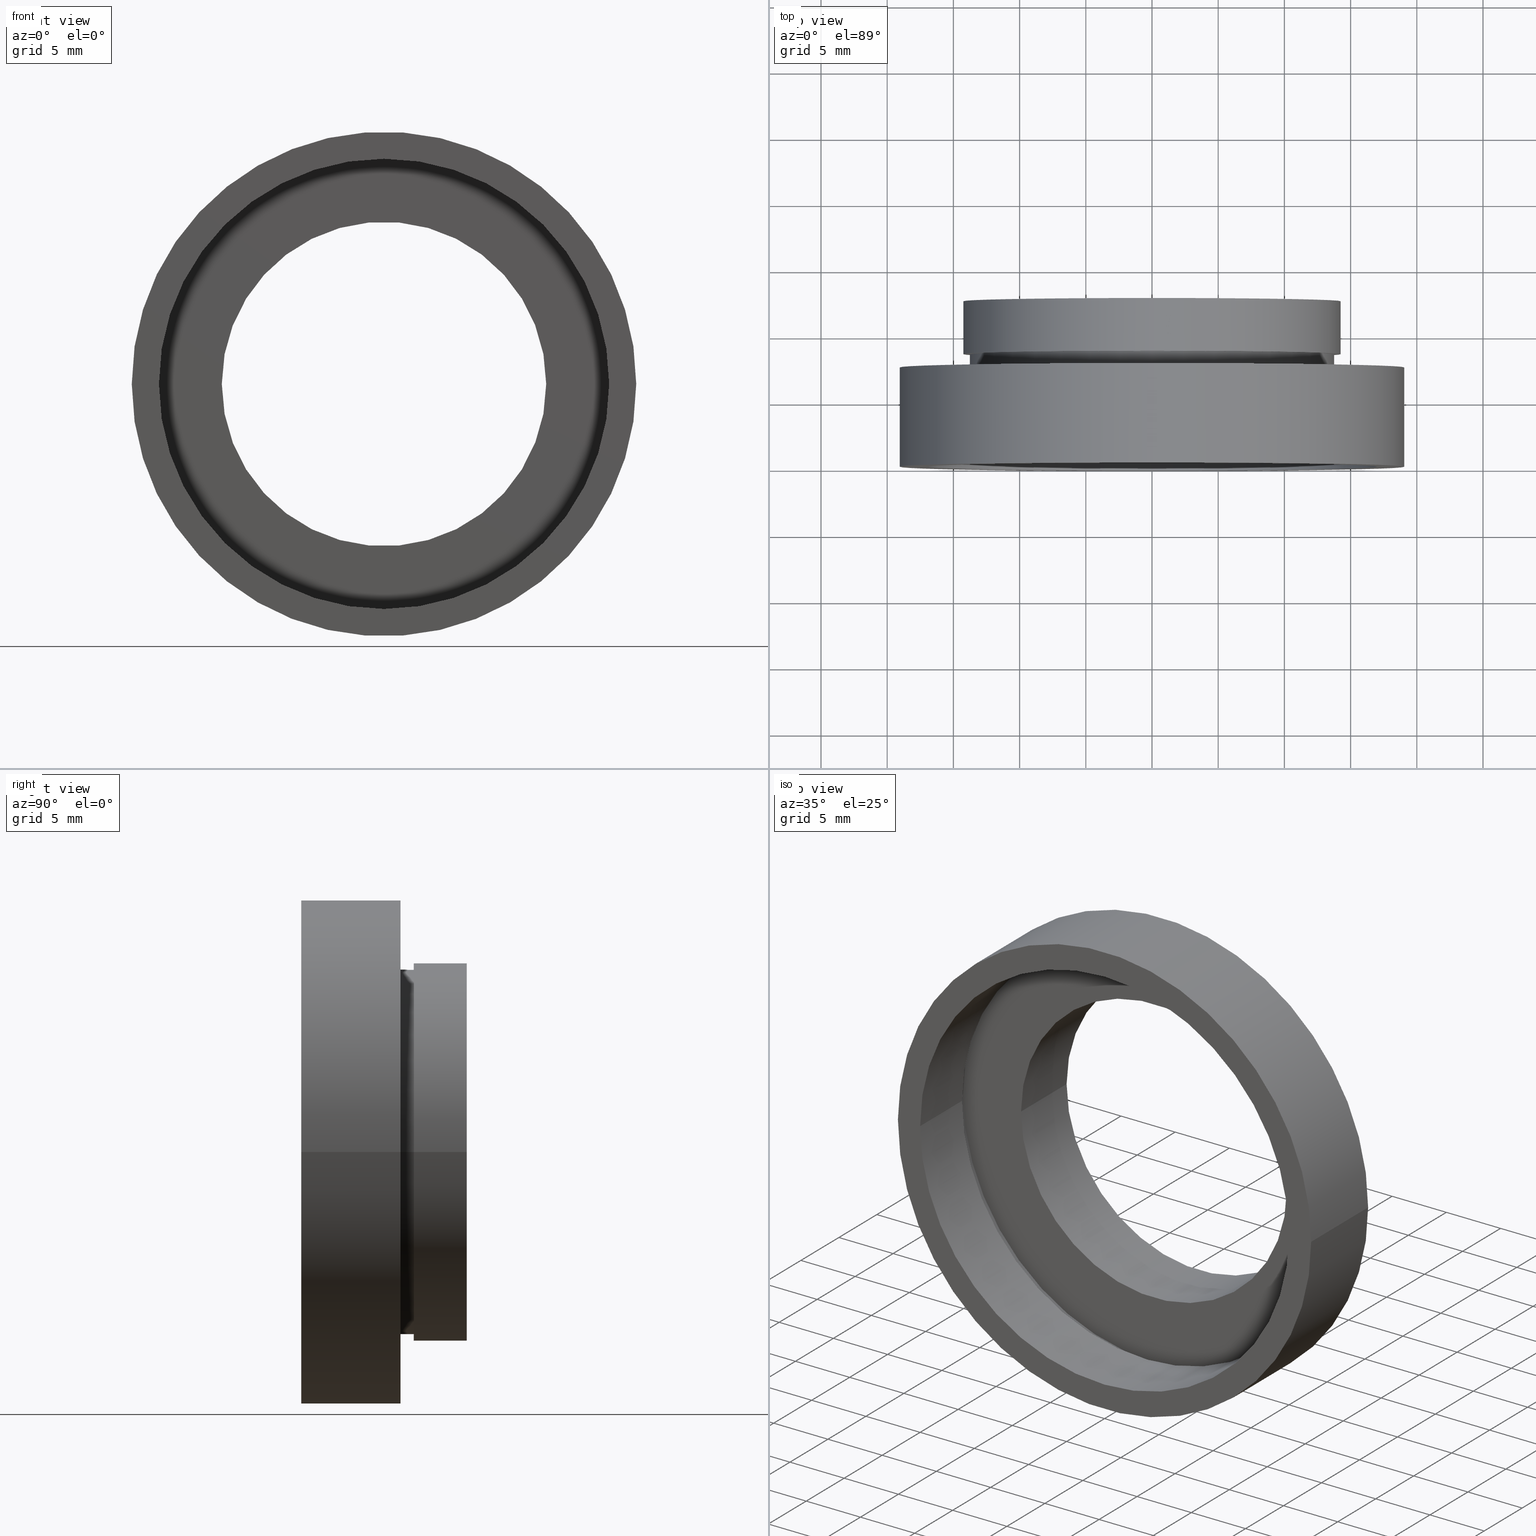
[diagram: canonical four-view strip — front | top / right | iso, engineering-drawing reading convention]
A machine part, canonical four-view strip (front | top / right | iso — engineering-drawing reading convention). The complete STEP part file that produces these views, byte-faithful:
ISO-10303-21;
HEADER;
FILE_DESCRIPTION (( 'STEP AP214' ),
    '1' );
FILE_NAME ('504054.STEP',
    '2019-10-08T03:26:30',
    ( 'user' ),
    ( '΢���й�' ),
    'SwSTEP 2.0',
    'SolidWorks 2016',
    '' );
FILE_SCHEMA (( 'AUTOMOTIVE_DESIGN' ));
ENDSEC;

DATA;
#1 = CARTESIAN_POINT ( 'NONE',  ( 5.371323195044474300E-016, 12.49999999999999600, 0.0000000000000000000 ) ) ;
#2 = AXIS2_PLACEMENT_3D ( 'NONE', #104, #344, #357 ) ;
#3 = EDGE_CURVE ( 'NONE', #366, #114, #51, .T. ) ;
#4 = EDGE_LOOP ( 'NONE', ( #441, #362, #584, #234 ) ) ;
#5 = VERTEX_POINT ( 'NONE', #405 ) ;
#6 = ORIENTED_EDGE ( 'NONE', *, *, #223, .F. ) ;
#7 = PLANE ( 'NONE',  #538 ) ;
#8 = EDGE_CURVE ( 'NONE', #5, #571, #325, .T. ) ;
#9 = CARTESIAN_POINT ( 'NONE',  ( 0.0000000000000000000, 16.88601823708207700, 0.0000000000000000000 ) ) ;
#10 = AXIS2_PLACEMENT_3D ( 'NONE', #50, #70, #326 ) ;
#11 = EDGE_CURVE ( 'NONE', #433, #220, #135, .T. ) ;
#12 = AXIS2_PLACEMENT_3D ( 'NONE', #170, #417, #169 ) ;
#13 = DIRECTION ( 'NONE',  ( -1.224646799147351000E-016, 1.000000000000000000, -0.0000000000000000000 ) ) ;
#14 = CYLINDRICAL_SURFACE ( 'NONE', #312, 19.04999999999999700 ) ;
#15 = DIRECTION ( 'NONE',  ( -1.000000000000000000, 0.0000000000000000000, 0.0000000000000000000 ) ) ;
#16 = ORIENTED_EDGE ( 'NONE', *, *, #322, .T. ) ;
#17 = VERTEX_POINT ( 'NONE', #131 ) ;
#18 = CARTESIAN_POINT ( 'NONE',  ( 0.0000000000000000000, 16.88601823708207700, 0.0000000000000000000 ) ) ;
#19 = ADVANCED_FACE ( 'NONE', ( #94 ), #286, .F. ) ;
#20 = DIRECTION ( 'NONE',  ( -1.000000000000000000, -1.365923996832131600E-016, 0.0000000000000000000 ) ) ;
#21 = CARTESIAN_POINT ( 'NONE',  ( -17.60000000000000100, 16.88601823708207300, 0.0000000000000000000 ) ) ;
#22 = CARTESIAN_POINT ( 'NONE',  ( 13.75000000000000200, 8.500000000000000000, 1.683889348827610700E-015 ) ) ;
#23 = CARTESIAN_POINT ( 'NONE',  ( -13.75000000000000000, 16.88601823708207700, 0.0000000000000000000 ) ) ;
#24 =( LENGTH_UNIT ( ) NAMED_UNIT ( * ) SI_UNIT ( .MILLI., .METRE. ) );
#25 = ORIENTED_EDGE ( 'NONE', *, *, #46, .F. ) ;
#26 = ORIENTED_EDGE ( 'NONE', *, *, #138, .F. ) ;
#27 = VERTEX_POINT ( 'NONE', #352 ) ;
#28 = DIRECTION ( 'NONE',  ( -1.224646799147351000E-016, 1.000000000000000000, -0.0000000000000000000 ) ) ;
#29 = DIRECTION ( 'NONE',  ( -1.224646799147351000E-016, 1.000000000000000000, -0.0000000000000000000 ) ) ;
#30 = VERTEX_POINT ( 'NONE', #79 ) ;
#31 = ORIENTED_EDGE ( 'NONE', *, *, #172, .F. ) ;
#32 =( LENGTH_UNIT ( ) NAMED_UNIT ( * ) SI_UNIT ( .MILLI., .METRE. ) );
#33 = VERTEX_POINT ( 'NONE', #34 ) ;
#34 = CARTESIAN_POINT ( 'NONE',  ( 12.25000000000000400, 6.499999999999999100, 1.500192328955508100E-015 ) ) ;
#35 = AXIS2_PLACEMENT_3D ( 'NONE', #448, #167, #119 ) ;
#36 = VECTOR ( 'NONE', #13, 1000.000000000000000 ) ;
#37 = DIRECTION ( 'NONE',  ( -1.000000000000000000, -9.856383386231857600E-017, 0.0000000000000000000 ) ) ;
#38 = ORIENTED_EDGE ( 'NONE', *, *, #144, .T. ) ;
#39 = ORIENTED_EDGE ( 'NONE', *, *, #582, .F. ) ;
#40 = EDGE_CURVE ( 'NONE', #220, #433, #277, .T. ) ;
#41 = ADVANCED_FACE ( 'NONE', ( #278 ), #576, .F. ) ;
#42 = CARTESIAN_POINT ( 'NONE',  ( -19.04999999999999700, 16.88601823708207300, 0.0000000000000000000 ) ) ;
#43 = STYLED_ITEM ( 'NONE', ( #615 ), #384 ) ;
#44 = STYLED_ITEM ( 'NONE', ( #544 ), #348 ) ;
#45 = CARTESIAN_POINT ( 'NONE',  ( 1.394385078907593000E-015, 5.499999999999998200, 0.0000000000000000000 ) ) ;
#46 = EDGE_CURVE ( 'NONE', #101, #587, #111, .T. ) ;
#47 = SURFACE_STYLE_FILL_AREA ( #141 ) ;
#48 = AXIS2_PLACEMENT_3D ( 'NONE', #526, #456, #392 ) ;
#49 = COLOUR_RGB ( '',1.000000000000000000, 1.000000000000000000, 1.000000000000000000 ) ;
#50 = CARTESIAN_POINT ( 'NONE',  ( 12.25000000000000200, 12.49999999999999800, 0.0000000000000000000 ) ) ;
#51 = CIRCLE ( 'NONE', #88, 14.25000000000000200 ) ;
#52 = ORIENTED_EDGE ( 'NONE', *, *, #565, .T. ) ;
#53 = ORIENTED_EDGE ( 'NONE', *, *, #291, .F. ) ;
#54 = DIRECTION ( 'NONE',  ( -1.224646799147351000E-016, 1.000000000000000000, -0.0000000000000000000 ) ) ;
#55 = CIRCLE ( 'NONE', #12, 12.25000000000000200 ) ;
#56 = DIRECTION ( 'NONE',  ( -1.224646799147351000E-016, 1.000000000000000000, -0.0000000000000000000 ) ) ;
#57 = ADVANCED_FACE ( 'NONE', ( #288 ), #390, .F. ) ;
#58 = EDGE_LOOP ( 'NONE', ( #39, #222, #186, #77 ) ) ;
#59 = DIRECTION ( 'NONE',  ( -1.224646799147351000E-016, 1.000000000000000000, -0.0000000000000000000 ) ) ;
#60 = ADVANCED_FACE ( 'NONE', ( #244, #194 ), #271, .F. ) ;
#61 =( LENGTH_UNIT ( ) NAMED_UNIT ( * ) SI_UNIT ( .MILLI., .METRE. ) );
#62 = DIRECTION ( 'NONE',  ( -1.224646799147351000E-016, 1.000000000000000000, -0.0000000000000000000 ) ) ;
#63 = DIRECTION ( 'NONE',  ( -1.224646799147351000E-016, 1.000000000000000000, -0.0000000000000000000 ) ) ;
#64 =( NAMED_UNIT ( * ) SI_UNIT ( $, .STERADIAN. ) SOLID_ANGLE_UNIT ( ) );
#65 = ORIENTED_EDGE ( 'NONE', *, *, #439, .F. ) ;
#66 = ORIENTED_EDGE ( 'NONE', *, *, #565, .F. ) ;
#67 = DIRECTION ( 'NONE',  ( -1.224646799147351000E-016, 1.000000000000000000, -0.0000000000000000000 ) ) ;
#68 = DIRECTION ( 'NONE',  ( -1.224646799147351000E-016, 1.000000000000000000, -0.0000000000000000000 ) ) ;
#69 = DIRECTION ( 'NONE',  ( -1.224646799147351000E-016, 1.000000000000000000, -0.0000000000000000000 ) ) ;
#70 = DIRECTION ( 'NONE',  ( 1.224646799147351000E-016, -1.000000000000000000, 0.0000000000000000000 ) ) ;
#71 = CIRCLE ( 'NONE', #343, 17.00000000000000400 ) ;
#72 = SURFACE_SIDE_STYLE ('',( #83 ) ) ;
#73 = DIRECTION ( 'NONE',  ( -1.224646799147351000E-016, 1.000000000000000000, -0.0000000000000000000 ) ) ;
#74 = AXIS2_PLACEMENT_3D ( 'NONE', #451, #491, #86 ) ;
#75 = ORIENTED_EDGE ( 'NONE', *, *, #473, .T. ) ;
#76 = CARTESIAN_POINT ( 'NONE',  ( 2.067940818438636500E-015, -3.469446951953614200E-015, 0.0000000000000000000 ) ) ;
#77 = ORIENTED_EDGE ( 'NONE', *, *, #46, .T. ) ;
#78 =( NAMED_UNIT ( * ) SI_UNIT ( $, .STERADIAN. ) SOLID_ANGLE_UNIT ( ) );
#79 = CARTESIAN_POINT ( 'NONE',  ( 17.60000000000000100, 6.499999999999999100, 2.155378366499341600E-015 ) ) ;
#80 = EDGE_CURVE ( 'NONE', #220, #27, #408, .T. ) ;
#81 = EDGE_CURVE ( 'NONE', #33, #374, #594, .T. ) ;
#82 = CARTESIAN_POINT ( 'NONE',  ( 1.394385078907593200E-015, 5.499999999999996400, 0.0000000000000000000 ) ) ;
#83 = SURFACE_STYLE_FILL_AREA ( #246 ) ;
#84 = DIRECTION ( 'NONE',  ( -1.000000000000000000, -1.261617073437678000E-016, 0.0000000000000000000 ) ) ;
#85 = PRESENTATION_LAYER_ASSIGNMENT (  '', '', ( #43 ) ) ;
#86 = DIRECTION ( 'NONE',  ( -1.000000000000000000, -1.261617073437678000E-016, 0.0000000000000000000 ) ) ;
#87 = AXIS2_PLACEMENT_3D ( 'NONE', #321, #469, #416 ) ;
#88 = AXIS2_PLACEMENT_3D ( 'NONE', #188, #95, #250 ) ;
#89 = AXIS2_PLACEMENT_3D ( 'NONE', #225, #63, #422 ) ;
#90 = ORIENTED_EDGE ( 'NONE', *, *, #230, .T. ) ;
#91 = DIRECTION ( 'NONE',  ( -1.224646799147351000E-016, 1.000000000000000000, -0.0000000000000000000 ) ) ;
#92 = COLOUR_RGB ( '',1.000000000000000000, 1.000000000000000000, 1.000000000000000000 ) ;
#93 = CARTESIAN_POINT ( 'NONE',  ( 12.25000000000000000, 16.88601823708207700, 1.500192328955507700E-015 ) ) ;
#94 = FACE_OUTER_BOUND ( 'NONE', #58, .T. ) ;
#95 = DIRECTION ( 'NONE',  ( -1.224646799147351000E-016, 1.000000000000000000, -0.0000000000000000000 ) ) ;
#96 = CIRCLE ( 'NONE', #74, 13.75000000000000000 ) ;
#97 = ORIENTED_EDGE ( 'NONE', *, *, #172, .T. ) ;
#98 = ADVANCED_FACE ( 'NONE', ( #414, #419 ), #130, .F. ) ;
#99 = SURFACE_STYLE_USAGE ( .BOTH. , #429 ) ;
#100 = FILL_AREA_STYLE ('',( #541 ) ) ;
#101 = VERTEX_POINT ( 'NONE', #323 ) ;
#102 = ORIENTED_EDGE ( 'NONE', *, *, #40, .T. ) ;
#103 = ORIENTED_EDGE ( 'NONE', *, *, #247, .T. ) ;
#104 = CARTESIAN_POINT ( 'NONE',  ( 14.25000000000000400, 8.500000000000000000, 0.0000000000000000000 ) ) ;
#105 = AXIS2_PLACEMENT_3D ( 'NONE', #482, #609, #160 ) ;
#106 = ADVANCED_FACE ( 'NONE', ( #410 ), #425, .F. ) ;
#107 = EDGE_CURVE ( 'NONE', #221, #597, #426, .T. ) ;
#108 = EDGE_CURVE ( 'NONE', #374, #583, #444, .T. ) ;
#109 = CARTESIAN_POINT ( 'NONE',  ( 1.394385078907593200E-015, 5.499999999999996400, 0.0000000000000000000 ) ) ;
#110 = CIRCLE ( 'NONE', #35, 14.25000000000000200 ) ;
#111 = CIRCLE ( 'NONE', #269, 17.00000000000000400 ) ;
#112 = DIRECTION ( 'NONE',  ( -1.000000000000000000, -1.224646799147351500E-016, 0.0000000000000000000 ) ) ;
#113 = CARTESIAN_POINT ( 'NONE',  ( 14.25000000000000200, 16.88601823708208000, 1.745121688784978600E-015 ) ) ;
#114 = VERTEX_POINT ( 'NONE', #266 ) ;
#115 = MECHANICAL_DESIGN_GEOMETRIC_PRESENTATION_REPRESENTATION (  '', ( #43 ), #462 ) ;
#116 = ORIENTED_EDGE ( 'NONE', *, *, #468, .T. ) ;
#117 = AXIS2_PLACEMENT_3D ( 'NONE', #1, #91, #370 ) ;
#118 = AXIS2_PLACEMENT_3D ( 'NONE', #421, #122, #84 ) ;
#119 = DIRECTION ( 'NONE',  ( -1.000000000000000000, -1.217349807703022400E-016, 0.0000000000000000000 ) ) ;
#120 = STYLED_ITEM ( 'NONE', ( #477 ), #480 ) ;
#121 = CARTESIAN_POINT ( 'NONE',  ( 1.394385078907593000E-015, 5.499999999999998200, 0.0000000000000000000 ) ) ;
#122 = DIRECTION ( 'NONE',  ( -1.224646799147351000E-016, 1.000000000000000000, -0.0000000000000000000 ) ) ;
#123 = DIRECTION ( 'NONE',  ( -1.224646799147351000E-016, 1.000000000000000000, -0.0000000000000000000 ) ) ;
#124 = PRESENTATION_STYLE_ASSIGNMENT (( #252 ) ) ;
#125 =( NAMED_UNIT ( * ) PLANE_ANGLE_UNIT ( ) SI_UNIT ( $, .RADIAN. ) );
#126 = UNCERTAINTY_MEASURE_WITH_UNIT (LENGTH_MEASURE( 1.000000000000000100E-005 ), #347, 'distance_accuracy_value', 'NONE');
#127 = CARTESIAN_POINT ( 'NONE',  ( -16.99999999999999600, -5.551346510504111700E-015, 0.0000000000000000000 ) ) ;
#128 = ORIENTED_EDGE ( 'NONE', *, *, #81, .F. ) ;
#129 = CARTESIAN_POINT ( 'NONE',  ( 17.00000000000000400, -1.387547393403117700E-015, 2.081899558550500700E-015 ) ) ;
#130 = PLANE ( 'NONE',  #2 ) ;
#131 = CARTESIAN_POINT ( 'NONE',  ( -13.74999999999999800, 7.499999999999996400, 0.0000000000000000000 ) ) ;
#132 = FACE_BOUND ( 'NONE', #315, .T. ) ;
#133 = CARTESIAN_POINT ( 'NONE',  ( 19.05000000000000100, 7.500000000000000900, 2.332952152375707600E-015 ) ) ;
#134 = CARTESIAN_POINT ( 'NONE',  ( 0.0000000000000000000, 16.88601823708207700, 0.0000000000000000000 ) ) ;
#135 = CIRCLE ( 'NONE', #150, 19.04999999999999700 ) ;
#136 = EDGE_LOOP ( 'NONE', ( #190, #191 ) ) ;
#137 = DIRECTION ( 'NONE',  ( -1.224646799147351000E-016, 1.000000000000000000, 0.0000000000000000000 ) ) ;
#138 = EDGE_CURVE ( 'NONE', #593, #571, #413, .T. ) ;
#139 = SURFACE_STYLE_USAGE ( .BOTH. , #140 ) ;
#140 = SURFACE_SIDE_STYLE ('',( #47 ) ) ;
#141 = FILL_AREA_STYLE ('',( #187 ) ) ;
#142 = AXIS2_PLACEMENT_3D ( 'NONE', #442, #62, #161 ) ;
#143 =( NAMED_UNIT ( * ) SI_UNIT ( $, .STERADIAN. ) SOLID_ANGLE_UNIT ( ) );
#144 = EDGE_CURVE ( 'NONE', #17, #593, #452, .T. ) ;
#145 = ORIENTED_EDGE ( 'NONE', *, *, #247, .F. ) ;
#146 = ORIENTED_EDGE ( 'NONE', *, *, #8, .T. ) ;
#147 =( NAMED_UNIT ( * ) PLANE_ANGLE_UNIT ( ) SI_UNIT ( $, .RADIAN. ) );
#148 = AXIS2_PLACEMENT_3D ( 'NONE', #284, #29, #340 ) ;
#149 = DIRECTION ( 'NONE',  ( -1.224646799147351000E-016, 1.000000000000000000, -0.0000000000000000000 ) ) ;
#150 = AXIS2_PLACEMENT_3D ( 'NONE', #519, #182, #155 ) ;
#151 = PRESENTATION_LAYER_ASSIGNMENT (  '', '', ( #120 ) ) ;
#152 = ORIENTED_EDGE ( 'NONE', *, *, #8, .F. ) ;
#153 = VERTEX_POINT ( 'NONE', #400 ) ;
#154 = SURFACE_STYLE_FILL_AREA ( #585 ) ;
#155 = DIRECTION ( 'NONE',  ( -1.000000000000000000, -1.224646799147351000E-016, 0.0000000000000000000 ) ) ;
#156 = ADVANCED_FACE ( 'NONE', ( #564 ), #458, .T. ) ;
#157 = CARTESIAN_POINT ( 'NONE',  ( -14.25000000000000200, 16.88601823708207300, 0.0000000000000000000 ) ) ;
#158 = ORIENTED_EDGE ( 'NONE', *, *, #473, .F. ) ;
#159 = ORIENTED_EDGE ( 'NONE', *, *, #196, .F. ) ;
#160 = DIRECTION ( 'NONE',  ( -1.000000000000000000, -2.434699615406044700E-016, 0.0000000000000000000 ) ) ;
#161 = DIRECTION ( 'NONE',  ( -1.000000000000000000, -9.856383386231857600E-017, 0.0000000000000000000 ) ) ;
#162 = EDGE_LOOP ( 'NONE', ( #415, #354 ) ) ;
#163 = DIRECTION ( 'NONE',  ( -1.000000000000000000, -1.224646799147351000E-016, 0.0000000000000000000 ) ) ;
#164 = CARTESIAN_POINT ( 'NONE',  ( 13.75000000000000200, 7.500000000000000000, 1.683889348827610700E-015 ) ) ;
#165 = CARTESIAN_POINT ( 'NONE',  ( -19.04999999999999400, -5.802399104329317500E-015, 0.0000000000000000000 ) ) ;
#166 = CARTESIAN_POINT ( 'NONE',  ( 0.0000000000000000000, 0.0000000000000000000, 0.0000000000000000000 ) ) ;
#167 = DIRECTION ( 'NONE',  ( -1.224646799147351000E-016, 1.000000000000000000, -0.0000000000000000000 ) ) ;
#168 = APPLICATION_PROTOCOL_DEFINITION ( 'draft international standard', 'automotive_design', 1998, #535 ) ;
#169 = DIRECTION ( 'NONE',  ( -1.000000000000000000, -1.416100796715760600E-016, 0.0000000000000000000 ) ) ;
#170 = CARTESIAN_POINT ( 'NONE',  ( 5.371323195044474300E-016, 12.49999999999999600, 0.0000000000000000000 ) ) ;
#171 =( NAMED_UNIT ( * ) SI_UNIT ( $, .STERADIAN. ) SOLID_ANGLE_UNIT ( ) );
#172 = EDGE_CURVE ( 'NONE', #571, #5, #460, .T. ) ;
#173 = DIRECTION ( 'NONE',  ( -1.000000000000000000, -2.434699615406044700E-016, 0.0000000000000000000 ) ) ;
#174 = DIRECTION ( 'NONE',  ( -1.224646799147351000E-016, 1.000000000000000000, -0.0000000000000000000 ) ) ;
#175 = SHAPE_DEFINITION_REPRESENTATION ( #193, #384 ) ;
#176 = FACE_OUTER_BOUND ( 'NONE', #339, .T. ) ;
#177 = PRESENTATION_LAYER_ASSIGNMENT (  '', '', ( #44 ) ) ;
#178 = STYLED_ITEM ( 'NONE', ( #185 ), #19 ) ;
#179 = MECHANICAL_DESIGN_GEOMETRIC_PRESENTATION_REPRESENTATION (  '', ( #120 ), #205 ) ;
#180 = ORIENTED_EDGE ( 'NONE', *, *, #601, .F. ) ;
#181 = SURFACE_SIDE_STYLE ('',( #154 ) ) ;
#182 = DIRECTION ( 'NONE',  ( -1.224646799147351000E-016, 1.000000000000000000, -0.0000000000000000000 ) ) ;
#183 = LINE ( 'NONE', #21, #294 ) ;
#184 = STYLED_ITEM ( 'NONE', ( #258 ), #57 ) ;
#185 = PRESENTATION_STYLE_ASSIGNMENT (( #99 ) ) ;
#186 = ORIENTED_EDGE ( 'NONE', *, *, #601, .T. ) ;
#187 = FILL_AREA_STYLE_COLOUR ( '', #198 ) ;
#188 = CARTESIAN_POINT ( 'NONE',  ( 5.371323195044474300E-016, 12.49999999999999600, 0.0000000000000000000 ) ) ;
#189 = EDGE_LOOP ( 'NONE', ( #388, #158, #611, #116 ) ) ;
#190 = ORIENTED_EDGE ( 'NONE', *, *, #196, .T. ) ;
#191 = ORIENTED_EDGE ( 'NONE', *, *, #499, .T. ) ;
#192 =( NAMED_UNIT ( * ) PLANE_ANGLE_UNIT ( ) SI_UNIT ( $, .RADIAN. ) );
#193 = PRODUCT_DEFINITION_SHAPE ( 'NONE', 'NONE',  #228 ) ;
#194 = FACE_OUTER_BOUND ( 'NONE', #453, .T. ) ;
#195 = AXIS2_PLACEMENT_3D ( 'NONE', #166, #485, #350 ) ;
#196 = EDGE_CURVE ( 'NONE', #359, #382, #575, .T. ) ;
#197 = PLANE ( 'NONE',  #10 ) ;
#198 = COLOUR_RGB ( '',1.000000000000000000, 1.000000000000000000, 1.000000000000000000 ) ;
#199 = SURFACE_STYLE_USAGE ( .BOTH. , #598 ) ;
#200 = DIRECTION ( 'NONE',  ( -1.000000000000000000, -1.020425574104004000E-016, 0.0000000000000000000 ) ) ;
#201 = ORIENTED_EDGE ( 'NONE', *, *, #11, .F. ) ;
#202 = MECHANICAL_DESIGN_GEOMETRIC_PRESENTATION_REPRESENTATION (  '', ( #44 ), #236 ) ;
#203 = PRESENTATION_LAYER_ASSIGNMENT (  '', '', ( #178 ) ) ;
#204 = DIRECTION ( 'NONE',  ( -1.224646799147351000E-016, 1.000000000000000000, -0.0000000000000000000 ) ) ;
#205 =( GEOMETRIC_REPRESENTATION_CONTEXT ( 3 ) GLOBAL_UNCERTAINTY_ASSIGNED_CONTEXT ( ( #224 ) ) GLOBAL_UNIT_ASSIGNED_CONTEXT ( ( #32, #147, #143 ) ) REPRESENTATION_CONTEXT ( 'NONE', 'WORKASPACE' ) );
#206 = DIRECTION ( 'NONE',  ( -1.000000000000000000, -1.217349807703022400E-016, 0.0000000000000000000 ) ) ;
#207 = CARTESIAN_POINT ( 'NONE',  ( 17.60000000000000100, 16.88601823708208000, 2.155378366499341600E-015 ) ) ;
#208 = CARTESIAN_POINT ( 'NONE',  ( 17.00000000000000400, 5.500000000000000000, 2.081899558550500700E-015 ) ) ;
#209 = ADVANCED_FACE ( 'NONE', ( #459 ), #483, .T. ) ;
#210 = LINE ( 'NONE', #308, #262 ) ;
#211 = COLOUR_RGB ( '',1.000000000000000000, 1.000000000000000000, 1.000000000000000000 ) ;
#212 = UNCERTAINTY_MEASURE_WITH_UNIT (LENGTH_MEASURE( 1.000000000000000100E-005 ), #61, 'distance_accuracy_value', 'NONE');
#213 = CARTESIAN_POINT ( 'NONE',  ( 1.026991039163387700E-015, 8.499999999999998200, 0.0000000000000000000 ) ) ;
#214 = VERTEX_POINT ( 'NONE', #488 ) ;
#215 = AXIS2_PLACEMENT_3D ( 'NONE', #76, #546, #545 ) ;
#216 = PRESENTATION_STYLE_ASSIGNMENT (( #579 ) ) ;
#217 = DIRECTION ( 'NONE',  ( -1.224646799147351000E-016, 1.000000000000000000, -0.0000000000000000000 ) ) ;
#218 = DIRECTION ( 'NONE',  ( -1.000000000000000000, 0.0000000000000000000, 0.0000000000000000000 ) ) ;
#219 = SURFACE_STYLE_USAGE ( .BOTH. , #358 ) ;
#220 = VERTEX_POINT ( 'NONE', #165 ) ;
#221 = VERTEX_POINT ( 'NONE', #127 ) ;
#222 = ORIENTED_EDGE ( 'NONE', *, *, #107, .F. ) ;
#223 = EDGE_CURVE ( 'NONE', #17, #5, #479, .T. ) ;
#224 = UNCERTAINTY_MEASURE_WITH_UNIT (LENGTH_MEASURE( 1.000000000000000100E-005 ), #32, 'distance_accuracy_value', 'NONE');
#225 = CARTESIAN_POINT ( 'NONE',  ( 1.271920398992858000E-015, 6.499999999999997300, 0.0000000000000000000 ) ) ;
#226 = ORIENTED_EDGE ( 'NONE', *, *, #231, .F. ) ;
#227 = CARTESIAN_POINT ( 'NONE',  ( -12.24999999999999800, 6.499999999999995600, 0.0000000000000000000 ) ) ;
#228 = PRODUCT_DEFINITION ( 'δ֪', '', #256, #455 ) ;
#229 = CARTESIAN_POINT ( 'NONE',  ( 13.75000000000000200, 7.500000000000000000, 0.0000000000000000000 ) ) ;
#230 = EDGE_CURVE ( 'NONE', #593, #17, #96, .T. ) ;
#231 = EDGE_CURVE ( 'NONE', #114, #366, #110, .T. ) ;
#232 = DIRECTION ( 'NONE',  ( -1.000000000000000000, -1.224646799147351500E-016, 0.0000000000000000000 ) ) ;
#233 = UNCERTAINTY_MEASURE_WITH_UNIT (LENGTH_MEASURE( 1.000000000000000100E-005 ), #447, 'distance_accuracy_value', 'NONE');
#234 = ORIENTED_EDGE ( 'NONE', *, *, #3, .F. ) ;
#235 = CLOSED_SHELL ( 'NONE', ( #156, #386, #209, #348, #106, #480, #436, #19, #297, #41, #373, #57, #290, #588, #98, #318, #60, #540 ) ) ;
#236 =( GEOMETRIC_REPRESENTATION_CONTEXT ( 3 ) GLOBAL_UNCERTAINTY_ASSIGNED_CONTEXT ( ( #614 ) ) GLOBAL_UNIT_ASSIGNED_CONTEXT ( ( #474, #566, #489 ) ) REPRESENTATION_CONTEXT ( 'NONE', 'WORKASPACE' ) );
#237 = MECHANICAL_DESIGN_GEOMETRIC_PRESENTATION_REPRESENTATION (  '', ( #178 ), #264 ) ;
#238 = AXIS2_PLACEMENT_3D ( 'NONE', #548, #608, #592 ) ;
#239 = VECTOR ( 'NONE', #248, 1000.000000000000000 ) ;
#240 = ORIENTED_EDGE ( 'NONE', *, *, #11, .T. ) ;
#241 = ORIENTED_EDGE ( 'NONE', *, *, #599, .T. ) ;
#242 = AXIS2_PLACEMENT_3D ( 'NONE', #18, #56, #406 ) ;
#243 = FACE_OUTER_BOUND ( 'NONE', #327, .T. ) ;
#244 = FACE_BOUND ( 'NONE', #162, .T. ) ;
#245 = DIRECTION ( 'NONE',  ( -1.000000000000000000, -1.821231995776175700E-016, 0.0000000000000000000 ) ) ;
#246 = FILL_AREA_STYLE ('',( #443 ) ) ;
#247 = EDGE_CURVE ( 'NONE', #214, #30, #486, .T. ) ;
#248 = DIRECTION ( 'NONE',  ( -1.224646799147351000E-016, 1.000000000000000000, -0.0000000000000000000 ) ) ;
#249 = DIRECTION ( 'NONE',  ( -1.224646799147351000E-016, 1.000000000000000000, -0.0000000000000000000 ) ) ;
#250 = DIRECTION ( 'NONE',  ( -1.000000000000000000, -1.217349807703022400E-016, 0.0000000000000000000 ) ) ;
#251 = CARTESIAN_POINT ( 'NONE',  ( 0.0000000000000000000, 16.88601823708207700, 0.0000000000000000000 ) ) ;
#252 = SURFACE_STYLE_USAGE ( .BOTH. , #72 ) ;
#253 = DIRECTION ( 'NONE',  ( 1.224646799147351000E-016, -1.000000000000000000, 0.0000000000000000000 ) ) ;
#254 = FILL_AREA_STYLE_COLOUR ( '', #283 ) ;
#255 = SURFACE_SIDE_STYLE ('',( #533 ) ) ;
#256 = PRODUCT_DEFINITION_FORMATION_WITH_SPECIFIED_SOURCE ( '�κ�', '', #521, .NOT_KNOWN. ) ;
#257 = ORIENTED_EDGE ( 'NONE', *, *, #556, .F. ) ;
#258 = PRESENTATION_STYLE_ASSIGNMENT (( #596 ) ) ;
#259 = EDGE_CURVE ( 'NONE', #33, #389, #503, .T. ) ;
#260 = ORIENTED_EDGE ( 'NONE', *, *, #536, .T. ) ;
#261 = PLANE ( 'NONE',  #87 ) ;
#262 = VECTOR ( 'NONE', #393, 1000.000000000000000 ) ;
#263 = PRESENTATION_LAYER_ASSIGNMENT (  '', '', ( #296 ) ) ;
#264 =( GEOMETRIC_REPRESENTATION_CONTEXT ( 3 ) GLOBAL_UNCERTAINTY_ASSIGNED_CONTEXT ( ( #372 ) ) GLOBAL_UNIT_ASSIGNED_CONTEXT ( ( #24, #446, #379 ) ) REPRESENTATION_CONTEXT ( 'NONE', 'WORKASPACE' ) );
#265 = AXIS2_PLACEMENT_3D ( 'NONE', #82, #54, #37 ) ;
#266 = CARTESIAN_POINT ( 'NONE',  ( -14.25000000000000200, 12.49999999999999500, 0.0000000000000000000 ) ) ;
#267 = ORIENTED_EDGE ( 'NONE', *, *, #531, .F. ) ;
#268 = EDGE_LOOP ( 'NONE', ( #620, #346 ) ) ;
#269 = AXIS2_PLACEMENT_3D ( 'NONE', #45, #385, #623 ) ;
#270 = ORIENTED_EDGE ( 'NONE', *, *, #81, .T. ) ;
#271 = PLANE ( 'NONE',  #530 ) ;
#272 = SURFACE_STYLE_FILL_AREA ( #313 ) ;
#273 = AXIS2_PLACEMENT_3D ( 'NONE', #589, #69, #554 ) ;
#274 = FILL_AREA_STYLE_COLOUR ( '', #523 ) ;
#275 = CIRCLE ( 'NONE', #507, 19.05000000000000100 ) ;
#276 = ORIENTED_EDGE ( 'NONE', *, *, #80, .T. ) ;
#277 = CIRCLE ( 'NONE', #215, 19.04999999999999700 ) ;
#278 = FACE_OUTER_BOUND ( 'NONE', #367, .T. ) ;
#279 = CARTESIAN_POINT ( 'NONE',  ( 13.75000000000000000, 16.88601823708207700, 1.683889348827610700E-015 ) ) ;
#280 = EDGE_LOOP ( 'NONE', ( #25, #66 ) ) ;
#281 = DIRECTION ( 'NONE',  ( 1.000000000000000000, 1.224646799147351000E-016, 0.0000000000000000000 ) ) ;
#282 = DIRECTION ( 'NONE',  ( -1.224646799147351000E-016, 1.000000000000000000, -0.0000000000000000000 ) ) ;
#283 = COLOUR_RGB ( '',1.000000000000000000, 1.000000000000000000, 1.000000000000000000 ) ;
#284 = CARTESIAN_POINT ( 'NONE',  ( 0.0000000000000000000, 16.88601823708207700, 0.0000000000000000000 ) ) ;
#285 = ORIENTED_EDGE ( 'NONE', *, *, #411, .F. ) ;
#286 = CYLINDRICAL_SURFACE ( 'NONE', #242, 17.00000000000000000 ) ;
#287 = PRODUCT_RELATED_PRODUCT_CATEGORY ( 'part', '', ( #521 ) ) ;
#288 = FACE_OUTER_BOUND ( 'NONE', #189, .T. ) ;
#289 = DIRECTION ( 'NONE',  ( -1.224646799147351000E-016, 1.000000000000000000, -0.0000000000000000000 ) ) ;
#290 = ADVANCED_FACE ( 'NONE', ( #525, #504 ), #197, .F. ) ;
#291 = EDGE_CURVE ( 'NONE', #153, #114, #508, .T. ) ;
#292 = DIRECTION ( 'NONE',  ( -1.224646799147351000E-016, 1.000000000000000000, -0.0000000000000000000 ) ) ;
#293 = CARTESIAN_POINT ( 'NONE',  ( -12.25000000000000200, 12.49999999999999500, 0.0000000000000000000 ) ) ;
#294 = VECTOR ( 'NONE', #560, 1000.000000000000000 ) ;
#295 = DIRECTION ( 'NONE',  ( -1.224646799147351000E-016, 1.000000000000000000, -0.0000000000000000000 ) ) ;
#296 = STYLED_ITEM ( 'NONE', ( #557 ), #365 ) ;
#297 = ADVANCED_FACE ( 'NONE', ( #493, #514 ), #261, .F. ) ;
#298 = DIRECTION ( 'NONE',  ( -1.224646799147351000E-016, 1.000000000000000000, -0.0000000000000000000 ) ) ;
#299 = AXIS2_PLACEMENT_3D ( 'NONE', #409, #174, #402 ) ;
#300 = DIRECTION ( 'NONE',  ( -1.224646799147351000E-016, 1.000000000000000000, -0.0000000000000000000 ) ) ;
#301 =( LENGTH_UNIT ( ) NAMED_UNIT ( * ) SI_UNIT ( .MILLI., .METRE. ) );
#302 =( LENGTH_UNIT ( ) NAMED_UNIT ( * ) SI_UNIT ( .MILLI., .METRE. ) );
#303 = CARTESIAN_POINT ( 'NONE',  ( 1.026991039163387700E-015, 8.499999999999998200, 0.0000000000000000000 ) ) ;
#304 = DIRECTION ( 'NONE',  ( -1.224646799147351000E-016, 1.000000000000000000, -0.0000000000000000000 ) ) ;
#305 = LINE ( 'NONE', #207, #449 ) ;
#306 = CARTESIAN_POINT ( 'NONE',  ( -12.25000000000000000, 16.88601823708207700, 0.0000000000000000000 ) ) ;
#307 = AXIS2_PLACEMENT_3D ( 'NONE', #440, #68, #391 ) ;
#308 = CARTESIAN_POINT ( 'NONE',  ( 17.00000000000000000, 16.88601823708208000, 2.081899558550500300E-015 ) ) ;
#309 = ORIENTED_EDGE ( 'NONE', *, *, #223, .T. ) ;
#310 = CARTESIAN_POINT ( 'NONE',  ( 0.0000000000000000000, 16.88601823708207700, 0.0000000000000000000 ) ) ;
#311 = APPLICATION_PROTOCOL_DEFINITION ( 'draft international standard', 'automotive_design', 1998, #501 ) ;
#312 = AXIS2_PLACEMENT_3D ( 'NONE', #310, #73, #349 ) ;
#313 = FILL_AREA_STYLE ('',( #616 ) ) ;
#314 = DIRECTION ( 'NONE',  ( -1.224646799147351000E-016, 1.000000000000000000, -0.0000000000000000000 ) ) ;
#315 = EDGE_LOOP ( 'NONE', ( #551, #622 ) ) ;
#316 = DIRECTION ( 'NONE',  ( -1.224646799147351000E-016, 1.000000000000000000, -0.0000000000000000000 ) ) ;
#317 = CARTESIAN_POINT ( 'NONE',  ( -17.60000000000000100, 5.499999999999994700, 0.0000000000000000000 ) ) ;
#318 = ADVANCED_FACE ( 'NONE', ( #532 ), #553, .T. ) ;
#319 = CYLINDRICAL_SURFACE ( 'NONE', #607, 13.75000000000000000 ) ;
#320 = EDGE_LOOP ( 'NONE', ( #102, #260, #336, #369 ) ) ;
#321 = CARTESIAN_POINT ( 'NONE',  ( 17.00000000000000400, 5.500000000000000000, 0.0000000000000000000 ) ) ;
#322 = EDGE_CURVE ( 'NONE', #389, #583, #558, .T. ) ;
#323 = CARTESIAN_POINT ( 'NONE',  ( -17.00000000000000400, 5.499999999999996400, 0.0000000000000000000 ) ) ;
#324 = CIRCLE ( 'NONE', #265, 17.60000000000000100 ) ;
#325 = CIRCLE ( 'NONE', #118, 13.75000000000000000 ) ;
#326 = DIRECTION ( 'NONE',  ( 1.000000000000000000, 1.224646799147351000E-016, 0.0000000000000000000 ) ) ;
#327 = EDGE_LOOP ( 'NONE', ( #145, #602 ) ) ;
#328 = ORIENTED_EDGE ( 'NONE', *, *, #40, .F. ) ;
#329 = AXIS2_PLACEMENT_3D ( 'NONE', #331, #314, #15 ) ;
#330 = AXIS2_PLACEMENT_3D ( 'NONE', #341, #454, #112 ) ;
#331 = CARTESIAN_POINT ( 'NONE',  ( 0.0000000000000000000, 16.88601823708207700, 0.0000000000000000000 ) ) ;
#332 = FACE_OUTER_BOUND ( 'NONE', #4, .T. ) ;
#333 = FACE_OUTER_BOUND ( 'NONE', #512, .T. ) ;
#334 = AXIS2_PLACEMENT_3D ( 'NONE', #395, #282, #232 ) ;
#335 = EDGE_LOOP ( 'NONE', ( #146, #97 ) ) ;
#336 = ORIENTED_EDGE ( 'NONE', *, *, #605, .F. ) ;
#337 = DIRECTION ( 'NONE',  ( -1.000000000000000000, -1.416100796715760900E-016, 0.0000000000000000000 ) ) ;
#338 = PRESENTATION_LAYER_ASSIGNMENT (  '', '', ( #184 ) ) ;
#339 = EDGE_LOOP ( 'NONE', ( #38, #381, #152, #6 ) ) ;
#340 = DIRECTION ( 'NONE',  ( -1.000000000000000000, 0.0000000000000000000, 0.0000000000000000000 ) ) ;
#341 = CARTESIAN_POINT ( 'NONE',  ( 2.067940818438636500E-015, -3.469446951953614200E-015, 0.0000000000000000000 ) ) ;
#342 = VECTOR ( 'NONE', #550, 1000.000000000000000 ) ;
#343 = AXIS2_PLACEMENT_3D ( 'NONE', #121, #123, #200 ) ;
#344 = DIRECTION ( 'NONE',  ( -1.224646799147351000E-016, 1.000000000000000000, 0.0000000000000000000 ) ) ;
#345 = EDGE_LOOP ( 'NONE', ( #361, #240, #276, #257 ) ) ;
#346 = ORIENTED_EDGE ( 'NONE', *, *, #3, .T. ) ;
#347 =( LENGTH_UNIT ( ) NAMED_UNIT ( * ) SI_UNIT ( .MILLI., .METRE. ) );
#348 = ADVANCED_FACE ( 'NONE', ( #528 ), #464, .F. ) ;
#349 = DIRECTION ( 'NONE',  ( -1.000000000000000000, -1.821231995776175700E-016, 0.0000000000000000000 ) ) ;
#350 = DIRECTION ( 'NONE',  ( 1.000000000000000000, 0.0000000000000000000, 0.0000000000000000000 ) ) ;
#351 = LINE ( 'NONE', #113, #36 ) ;
#352 = CARTESIAN_POINT ( 'NONE',  ( -19.05000000000000100, 7.499999999999995600, 0.0000000000000000000 ) ) ;
#353 = CARTESIAN_POINT ( 'NONE',  ( 1.271920398992858000E-015, 6.499999999999997300, 0.0000000000000000000 ) ) ;
#354 = ORIENTED_EDGE ( 'NONE', *, *, #230, .F. ) ;
#355 = ORIENTED_EDGE ( 'NONE', *, *, #468, .F. ) ;
#356 = ORIENTED_EDGE ( 'NONE', *, *, #599, .F. ) ;
#357 = DIRECTION ( 'NONE',  ( -1.000000000000000000, -1.224646799147351000E-016, 0.0000000000000000000 ) ) ;
#358 = SURFACE_SIDE_STYLE ('',( #465 ) ) ;
#359 = VERTEX_POINT ( 'NONE', #317 ) ;
#360 = EDGE_LOOP ( 'NONE', ( #518, #559, #52, #180 ) ) ;
#361 = ORIENTED_EDGE ( 'NONE', *, *, #536, .F. ) ;
#362 = ORIENTED_EDGE ( 'NONE', *, *, #531, .T. ) ;
#363 = MECHANICAL_DESIGN_GEOMETRIC_PRESENTATION_REPRESENTATION (  '', ( #296 ), #394 ) ;
#364 = AXIS2_PLACEMENT_3D ( 'NONE', #303, #461, #437 ) ;
#365 = MANIFOLD_SOLID_BREP ( '��ת1', #235 ) ;
#366 = VERTEX_POINT ( 'NONE', #621 ) ;
#367 = EDGE_LOOP ( 'NONE', ( #65, #159, #606, #103 ) ) ;
#368 = AXIS2_PLACEMENT_3D ( 'NONE', #432, #292, #427 ) ;
#369 = ORIENTED_EDGE ( 'NONE', *, *, #80, .F. ) ;
#370 = DIRECTION ( 'NONE',  ( -1.000000000000000000, -1.416100796715760600E-016, 0.0000000000000000000 ) ) ;
#371 = MECHANICAL_DESIGN_GEOMETRIC_PRESENTATION_REPRESENTATION (  '', ( #184 ), #407 ) ;
#372 = UNCERTAINTY_MEASURE_WITH_UNIT (LENGTH_MEASURE( 1.000000000000000100E-005 ), #24, 'distance_accuracy_value', 'NONE');
#373 = ADVANCED_FACE ( 'NONE', ( #243, #511 ), #7, .F. ) ;
#374 = VERTEX_POINT ( 'NONE', #227 ) ;
#375 = STYLED_ITEM ( 'NONE', ( #124 ), #588 ) ;
#376 = EDGE_LOOP ( 'NONE', ( #505, #397, #396, #285 ) ) ;
#377 = CARTESIAN_POINT ( 'NONE',  ( 14.25000000000000500, 8.500000000000000000, 1.745121688784979000E-015 ) ) ;
#378 = ORIENTED_EDGE ( 'NONE', *, *, #108, .F. ) ;
#379 =( NAMED_UNIT ( * ) SI_UNIT ( $, .STERADIAN. ) SOLID_ANGLE_UNIT ( ) );
#380 = VECTOR ( 'NONE', #59, 1000.000000000000000 ) ;
#381 = ORIENTED_EDGE ( 'NONE', *, *, #138, .T. ) ;
#382 = VERTEX_POINT ( 'NONE', #471 ) ;
#383 = VERTEX_POINT ( 'NONE', #133 ) ;
#384 = ADVANCED_BREP_SHAPE_REPRESENTATION ( '504054', ( #365, #195 ), #603 ) ;
#385 = DIRECTION ( 'NONE',  ( -1.224646799147351000E-016, 1.000000000000000000, -0.0000000000000000000 ) ) ;
#386 = ADVANCED_FACE ( 'NONE', ( #176 ), #319, .T. ) ;
#387 =( NAMED_UNIT ( * ) PLANE_ANGLE_UNIT ( ) SI_UNIT ( $, .RADIAN. ) );
#388 = ORIENTED_EDGE ( 'NONE', *, *, #259, .F. ) ;
#389 = VERTEX_POINT ( 'NONE', #555 ) ;
#390 = CYLINDRICAL_SURFACE ( 'NONE', #497, 12.25000000000000000 ) ;
#391 = DIRECTION ( 'NONE',  ( -1.000000000000000000, -1.971276677246371500E-016, 0.0000000000000000000 ) ) ;
#392 = DIRECTION ( 'NONE',  ( -1.000000000000000000, -1.224646799147351000E-016, 0.0000000000000000000 ) ) ;
#393 = DIRECTION ( 'NONE',  ( -1.224646799147351000E-016, 1.000000000000000000, -0.0000000000000000000 ) ) ;
#394 =( GEOMETRIC_REPRESENTATION_CONTEXT ( 3 ) GLOBAL_UNCERTAINTY_ASSIGNED_CONTEXT ( ( #475 ) ) GLOBAL_UNIT_ASSIGNED_CONTEXT ( ( #302, #578, #420 ) ) REPRESENTATION_CONTEXT ( 'NONE', 'WORKASPACE' ) );
#395 = CARTESIAN_POINT ( 'NONE',  ( 2.067940818438636500E-015, -3.469446951953614200E-015, 0.0000000000000000000 ) ) ;
#396 = ORIENTED_EDGE ( 'NONE', *, *, #509, .T. ) ;
#397 = ORIENTED_EDGE ( 'NONE', *, *, #439, .T. ) ;
#398 = EDGE_LOOP ( 'NONE', ( #241, #418, #226, #53 ) ) ;
#399 = ORIENTED_EDGE ( 'NONE', *, *, #322, .F. ) ;
#400 = CARTESIAN_POINT ( 'NONE',  ( -14.25000000000000000, 8.499999999999996400, 0.0000000000000000000 ) ) ;
#401 = AXIS2_PLACEMENT_3D ( 'NONE', #619, #316, #604 ) ;
#402 = DIRECTION ( 'NONE',  ( -1.000000000000000000, -2.040851148208008200E-016, 0.0000000000000000000 ) ) ;
#403 = CARTESIAN_POINT ( 'NONE',  ( -17.00000000000000000, 16.88601823708207300, 0.0000000000000000000 ) ) ;
#404 =( NAMED_UNIT ( * ) PLANE_ANGLE_UNIT ( ) SI_UNIT ( $, .RADIAN. ) );
#405 = CARTESIAN_POINT ( 'NONE',  ( -13.74999999999999800, 8.499999999999996400, 0.0000000000000000000 ) ) ;
#406 = DIRECTION ( 'NONE',  ( -1.000000000000000000, -2.040851148208008200E-016, 0.0000000000000000000 ) ) ;
#407 =( GEOMETRIC_REPRESENTATION_CONTEXT ( 3 ) GLOBAL_UNCERTAINTY_ASSIGNED_CONTEXT ( ( #212 ) ) GLOBAL_UNIT_ASSIGNED_CONTEXT ( ( #61, #404, #171 ) ) REPRESENTATION_CONTEXT ( 'NONE', 'WORKASPACE' ) );
#408 = LINE ( 'NONE', #42, #239 ) ;
#409 = CARTESIAN_POINT ( 'NONE',  ( 0.0000000000000000000, 16.88601823708207700, 0.0000000000000000000 ) ) ;
#410 = FACE_OUTER_BOUND ( 'NONE', #376, .T. ) ;
#411 = EDGE_CURVE ( 'NONE', #359, #214, #183, .T. ) ;
#412 = PRESENTATION_LAYER_ASSIGNMENT (  '', '', ( #375 ) ) ;
#413 = LINE ( 'NONE', #279, #520 ) ;
#414 = FACE_OUTER_BOUND ( 'NONE', #617, .T. ) ;
#415 = ORIENTED_EDGE ( 'NONE', *, *, #144, .F. ) ;
#416 = DIRECTION ( 'NONE',  ( 1.000000000000000000, 1.224646799147351000E-016, 0.0000000000000000000 ) ) ;
#417 = DIRECTION ( 'NONE',  ( -1.224646799147351000E-016, 1.000000000000000000, -0.0000000000000000000 ) ) ;
#418 = ORIENTED_EDGE ( 'NONE', *, *, #570, .T. ) ;
#419 = FACE_BOUND ( 'NONE', #335, .T. ) ;
#420 =( NAMED_UNIT ( * ) SI_UNIT ( $, .STERADIAN. ) SOLID_ANGLE_UNIT ( ) );
#421 = CARTESIAN_POINT ( 'NONE',  ( 1.026991039163387700E-015, 8.499999999999998200, 0.0000000000000000000 ) ) ;
#422 = DIRECTION ( 'NONE',  ( -1.000000000000000000, -1.416100796715760900E-016, 0.0000000000000000000 ) ) ;
#423 = CYLINDRICAL_SURFACE ( 'NONE', #568, 14.25000000000000200 ) ;
#424 = VECTOR ( 'NONE', #289, 1000.000000000000000 ) ;
#425 = CYLINDRICAL_SURFACE ( 'NONE', #368, 17.60000000000000100 ) ;
#426 = CIRCLE ( 'NONE', #334, 17.00000000000000000 ) ;
#427 = DIRECTION ( 'NONE',  ( -1.000000000000000000, -1.971276677246371500E-016, 0.0000000000000000000 ) ) ;
#428 = EDGE_LOOP ( 'NONE', ( #26, #90, #309, #31 ) ) ;
#429 = SURFACE_SIDE_STYLE ('',( #435 ) ) ;
#430 = AXIS2_PLACEMENT_3D ( 'NONE', #109, #569, #581 ) ;
#431 = SURFACE_STYLE_FILL_AREA ( #549 ) ;
#432 = CARTESIAN_POINT ( 'NONE',  ( 0.0000000000000000000, 16.88601823708207700, 0.0000000000000000000 ) ) ;
#433 = VERTEX_POINT ( 'NONE', #537 ) ;
#434 = AXIS2_PLACEMENT_3D ( 'NONE', #353, #295, #337 ) ;
#435 = SURFACE_STYLE_FILL_AREA ( #567 ) ;
#436 = ADVANCED_FACE ( 'NONE', ( #333, #132 ), #572, .F. ) ;
#437 = DIRECTION ( 'NONE',  ( -1.000000000000000000, -1.217349807703022400E-016, 0.0000000000000000000 ) ) ;
#438 = MECHANICAL_DESIGN_GEOMETRIC_PRESENTATION_REPRESENTATION (  '', ( #375 ), #472 ) ;
#439 = EDGE_CURVE ( 'NONE', #382, #30, #305, .T. ) ;
#440 = CARTESIAN_POINT ( 'NONE',  ( 0.0000000000000000000, 16.88601823708207700, 0.0000000000000000000 ) ) ;
#441 = ORIENTED_EDGE ( 'NONE', *, *, #570, .F. ) ;
#442 = CARTESIAN_POINT ( 'NONE',  ( 1.271920398992858000E-015, 6.499999999999997300, 0.0000000000000000000 ) ) ;
#443 = FILL_AREA_STYLE_COLOUR ( '', #211 ) ;
#444 = LINE ( 'NONE', #306, #424 ) ;
#445 = ORIENTED_EDGE ( 'NONE', *, *, #605, .T. ) ;
#446 =( NAMED_UNIT ( * ) PLANE_ANGLE_UNIT ( ) SI_UNIT ( $, .RADIAN. ) );
#447 =( LENGTH_UNIT ( ) NAMED_UNIT ( * ) SI_UNIT ( .MILLI., .METRE. ) );
#448 = CARTESIAN_POINT ( 'NONE',  ( 5.371323195044474300E-016, 12.49999999999999600, 0.0000000000000000000 ) ) ;
#449 = VECTOR ( 'NONE', #204, 1000.000000000000000 ) ;
#450 = CARTESIAN_POINT ( 'NONE',  ( 1.149455719078122700E-015, 7.499999999999998200, 0.0000000000000000000 ) ) ;
#451 = CARTESIAN_POINT ( 'NONE',  ( 1.149455719078122700E-015, 7.499999999999998200, 0.0000000000000000000 ) ) ;
#452 = CIRCLE ( 'NONE', #401, 13.75000000000000000 ) ;
#453 = EDGE_LOOP ( 'NONE', ( #445, #487 ) ) ;
#454 = DIRECTION ( 'NONE',  ( -1.224646799147351000E-016, 1.000000000000000000, -0.0000000000000000000 ) ) ;
#455 = PRODUCT_DEFINITION_CONTEXT ( 'detailed design', #501, 'design' ) ;
#456 = DIRECTION ( 'NONE',  ( -1.224646799147351000E-016, 1.000000000000000000, 0.0000000000000000000 ) ) ;
#457 = COLOUR_RGB ( '',1.000000000000000000, 1.000000000000000000, 1.000000000000000000 ) ;
#458 = CYLINDRICAL_SURFACE ( 'NONE', #494, 19.04999999999999700 ) ;
#459 = FACE_OUTER_BOUND ( 'NONE', #398, .T. ) ;
#460 = CIRCLE ( 'NONE', #466, 13.75000000000000000 ) ;
#461 = DIRECTION ( 'NONE',  ( -1.224646799147351000E-016, 1.000000000000000000, -0.0000000000000000000 ) ) ;
#462 =( GEOMETRIC_REPRESENTATION_CONTEXT ( 3 ) GLOBAL_UNCERTAINTY_ASSIGNED_CONTEXT ( ( #470 ) ) GLOBAL_UNIT_ASSIGNED_CONTEXT ( ( #301, #387, #498 ) ) REPRESENTATION_CONTEXT ( 'NONE', 'WORKASPACE' ) );
#463 = DIRECTION ( 'NONE',  ( -1.000000000000000000, -1.261617073437678000E-016, 0.0000000000000000000 ) ) ;
#464 = CYLINDRICAL_SURFACE ( 'NONE', #329, 12.25000000000000000 ) ;
#465 = SURFACE_STYLE_FILL_AREA ( #515 ) ;
#466 = AXIS2_PLACEMENT_3D ( 'NONE', #516, #502, #463 ) ;
#467 = CARTESIAN_POINT ( 'NONE',  ( 0.0000000000000000000, 16.88601823708207700, 0.0000000000000000000 ) ) ;
#468 = EDGE_CURVE ( 'NONE', #583, #389, #55, .T. ) ;
#469 = DIRECTION ( 'NONE',  ( 1.224646799147351000E-016, -1.000000000000000000, 0.0000000000000000000 ) ) ;
#470 = UNCERTAINTY_MEASURE_WITH_UNIT (LENGTH_MEASURE( 1.000000000000000100E-005 ), #301, 'distance_accuracy_value', 'NONE');
#471 = CARTESIAN_POINT ( 'NONE',  ( 17.60000000000000100, 5.499999999999998200, 2.155378366499341600E-015 ) ) ;
#472 =( GEOMETRIC_REPRESENTATION_CONTEXT ( 3 ) GLOBAL_UNCERTAINTY_ASSIGNED_CONTEXT ( ( #126 ) ) GLOBAL_UNIT_ASSIGNED_CONTEXT ( ( #347, #586, #64 ) ) REPRESENTATION_CONTEXT ( 'NONE', 'WORKASPACE' ) );
#473 = EDGE_CURVE ( 'NONE', #374, #33, #524, .T. ) ;
#474 =( LENGTH_UNIT ( ) NAMED_UNIT ( * ) SI_UNIT ( .MILLI., .METRE. ) );
#475 = UNCERTAINTY_MEASURE_WITH_UNIT (LENGTH_MEASURE( 1.000000000000000100E-005 ), #302, 'distance_accuracy_value', 'NONE');
#476 = CIRCLE ( 'NONE', #238, 17.60000000000000100 ) ;
#477 = PRESENTATION_STYLE_ASSIGNMENT (( #139 ) ) ;
#478 = SURFACE_STYLE_USAGE ( .BOTH. , #255 ) ;
#479 = LINE ( 'NONE', #23, #484 ) ;
#480 = ADVANCED_FACE ( 'NONE', ( #562 ), #510, .F. ) ;
#481 = LINE ( 'NONE', #590, #380 ) ;
#482 = CARTESIAN_POINT ( 'NONE',  ( 0.0000000000000000000, 16.88601823708207700, 0.0000000000000000000 ) ) ;
#483 = CYLINDRICAL_SURFACE ( 'NONE', #105, 14.25000000000000200 ) ;
#484 = VECTOR ( 'NONE', #298, 1000.000000000000000 ) ;
#485 = DIRECTION ( 'NONE',  ( 0.0000000000000000000, 0.0000000000000000000, 1.000000000000000000 ) ) ;
#486 = CIRCLE ( 'NONE', #142, 17.60000000000000100 ) ;
#487 = ORIENTED_EDGE ( 'NONE', *, *, #556, .T. ) ;
#488 = CARTESIAN_POINT ( 'NONE',  ( -17.60000000000000100, 6.499999999999995600, 0.0000000000000000000 ) ) ;
#489 =( NAMED_UNIT ( * ) SI_UNIT ( $, .STERADIAN. ) SOLID_ANGLE_UNIT ( ) );
#490 = VECTOR ( 'NONE', #217, 1000.000000000000000 ) ;
#491 = DIRECTION ( 'NONE',  ( -1.224646799147351000E-016, 1.000000000000000000, -0.0000000000000000000 ) ) ;
#492 = VERTEX_POINT ( 'NONE', #377 ) ;
#493 = FACE_BOUND ( 'NONE', #280, .T. ) ;
#494 = AXIS2_PLACEMENT_3D ( 'NONE', #251, #249, #245 ) ;
#495 = FILL_AREA_STYLE_COLOUR ( '', #49 ) ;
#496 = SURFACE_SIDE_STYLE ('',( #272 ) ) ;
#497 = AXIS2_PLACEMENT_3D ( 'NONE', #134, #28, #218 ) ;
#498 =( NAMED_UNIT ( * ) SI_UNIT ( $, .STERADIAN. ) SOLID_ANGLE_UNIT ( ) );
#499 = EDGE_CURVE ( 'NONE', #382, #359, #324, .T. ) ;
#500 = PRODUCT_CONTEXT ( 'NONE', #535, 'mechanical' ) ;
#501 = APPLICATION_CONTEXT ( 'automotive_design' ) ;
#502 = DIRECTION ( 'NONE',  ( -1.224646799147351000E-016, 1.000000000000000000, -0.0000000000000000000 ) ) ;
#503 = LINE ( 'NONE', #93, #490 ) ;
#504 = FACE_OUTER_BOUND ( 'NONE', #268, .T. ) ;
#505 = ORIENTED_EDGE ( 'NONE', *, *, #499, .F. ) ;
#506 = DIRECTION ( 'NONE',  ( -1.224646799147351000E-016, 1.000000000000000000, -0.0000000000000000000 ) ) ;
#507 = AXIS2_PLACEMENT_3D ( 'NONE', #450, #304, #20 ) ;
#508 = LINE ( 'NONE', #157, #517 ) ;
#509 = EDGE_CURVE ( 'NONE', #30, #214, #476, .T. ) ;
#510 = CYLINDRICAL_SURFACE ( 'NONE', #299, 17.00000000000000000 ) ;
#511 = FACE_BOUND ( 'NONE', #552, .T. ) ;
#512 = EDGE_LOOP ( 'NONE', ( #328, #201 ) ) ;
#513 =( LENGTH_UNIT ( ) NAMED_UNIT ( * ) SI_UNIT ( .MILLI., .METRE. ) );
#514 = FACE_OUTER_BOUND ( 'NONE', #136, .T. ) ;
#515 = FILL_AREA_STYLE ('',( #274 ) ) ;
#516 = CARTESIAN_POINT ( 'NONE',  ( 1.026991039163387700E-015, 8.499999999999998200, 0.0000000000000000000 ) ) ;
#517 = VECTOR ( 'NONE', #67, 1000.000000000000000 ) ;
#518 = ORIENTED_EDGE ( 'NONE', *, *, #522, .F. ) ;
#519 = CARTESIAN_POINT ( 'NONE',  ( 2.067940818438636500E-015, -3.469446951953614200E-015, 0.0000000000000000000 ) ) ;
#520 = VECTOR ( 'NONE', #618, 1000.000000000000000 ) ;
#521 = PRODUCT ( '504054', '504054', '', ( #500 ) ) ;
#522 = EDGE_CURVE ( 'NONE', #597, #221, #600, .T. ) ;
#523 = COLOUR_RGB ( '',1.000000000000000000, 1.000000000000000000, 1.000000000000000000 ) ;
#524 = CIRCLE ( 'NONE', #89, 12.25000000000000000 ) ;
#525 = FACE_BOUND ( 'NONE', #612, .T. ) ;
#526 = CARTESIAN_POINT ( 'NONE',  ( 19.05000000000000100, -8.225062277234867800E-016, 0.0000000000000000000 ) ) ;
#527 = EDGE_LOOP ( 'NONE', ( #128, #577, #16, #378 ) ) ;
#528 = FACE_OUTER_BOUND ( 'NONE', #527, .T. ) ;
#529 = STYLED_ITEM ( 'NONE', ( #216 ), #209 ) ;
#530 = AXIS2_PLACEMENT_3D ( 'NONE', #229, #253, #281 ) ;
#531 = EDGE_CURVE ( 'NONE', #492, #153, #580, .T. ) ;
#532 = FACE_OUTER_BOUND ( 'NONE', #428, .T. ) ;
#533 = SURFACE_STYLE_FILL_AREA ( #100 ) ;
#534 = AXIS2_PLACEMENT_3D ( 'NONE', #213, #506, #206 ) ;
#535 = APPLICATION_CONTEXT ( 'automotive_design' ) ;
#536 = EDGE_CURVE ( 'NONE', #433, #383, #481, .T. ) ;
#537 = CARTESIAN_POINT ( 'NONE',  ( 19.05000000000000100, -1.136494799577911100E-015, 2.332952152375707600E-015 ) ) ;
#538 = AXIS2_PLACEMENT_3D ( 'NONE', #613, #137, #163 ) ;
#539 = CIRCLE ( 'NONE', #273, 19.05000000000000100 ) ;
#540 = ADVANCED_FACE ( 'NONE', ( #573 ), #14, .T. ) ;
#541 = FILL_AREA_STYLE_COLOUR ( '', #542 ) ;
#542 = COLOUR_RGB ( '',1.000000000000000000, 1.000000000000000000, 1.000000000000000000 ) ;
#543 =( NAMED_UNIT ( * ) SI_UNIT ( $, .STERADIAN. ) SOLID_ANGLE_UNIT ( ) );
#544 = PRESENTATION_STYLE_ASSIGNMENT (( #478 ) ) ;
#545 = DIRECTION ( 'NONE',  ( -1.000000000000000000, -1.224646799147351000E-016, 0.0000000000000000000 ) ) ;
#546 = DIRECTION ( 'NONE',  ( -1.224646799147351000E-016, 1.000000000000000000, -0.0000000000000000000 ) ) ;
#547 = LINE ( 'NONE', #403, #342 ) ;
#548 = CARTESIAN_POINT ( 'NONE',  ( 1.271920398992858000E-015, 6.499999999999997300, 0.0000000000000000000 ) ) ;
#549 = FILL_AREA_STYLE ('',( #254 ) ) ;
#550 = DIRECTION ( 'NONE',  ( -1.224646799147351000E-016, 1.000000000000000000, -0.0000000000000000000 ) ) ;
#551 = ORIENTED_EDGE ( 'NONE', *, *, #107, .T. ) ;
#552 = EDGE_LOOP ( 'NONE', ( #75, #270 ) ) ;
#553 = CYLINDRICAL_SURFACE ( 'NONE', #148, 13.75000000000000000 ) ;
#554 = DIRECTION ( 'NONE',  ( -1.000000000000000000, -1.365923996832131600E-016, 0.0000000000000000000 ) ) ;
#555 = CARTESIAN_POINT ( 'NONE',  ( 12.25000000000000400, 12.49999999999999800, 1.500192328955508100E-015 ) ) ;
#556 = EDGE_CURVE ( 'NONE', #383, #27, #539, .T. ) ;
#557 = PRESENTATION_STYLE_ASSIGNMENT (( #219 ) ) ;
#558 = CIRCLE ( 'NONE', #117, 12.25000000000000200 ) ;
#559 = ORIENTED_EDGE ( 'NONE', *, *, #582, .T. ) ;
#560 = DIRECTION ( 'NONE',  ( -1.224646799147351000E-016, 1.000000000000000000, -0.0000000000000000000 ) ) ;
#561 = FILL_AREA_STYLE_COLOUR ( '', #457 ) ;
#562 = FACE_OUTER_BOUND ( 'NONE', #360, .T. ) ;
#563 = PRESENTATION_LAYER_ASSIGNMENT (  '', '', ( #529 ) ) ;
#564 = FACE_OUTER_BOUND ( 'NONE', #320, .T. ) ;
#565 = EDGE_CURVE ( 'NONE', #587, #101, #71, .T. ) ;
#566 =( NAMED_UNIT ( * ) PLANE_ANGLE_UNIT ( ) SI_UNIT ( $, .RADIAN. ) );
#567 = FILL_AREA_STYLE ('',( #495 ) ) ;
#568 = AXIS2_PLACEMENT_3D ( 'NONE', #9, #300, #173 ) ;
#569 = DIRECTION ( 'NONE',  ( -1.224646799147351000E-016, 1.000000000000000000, -0.0000000000000000000 ) ) ;
#570 = EDGE_CURVE ( 'NONE', #492, #366, #351, .T. ) ;
#571 = VERTEX_POINT ( 'NONE', #22 ) ;
#572 = PLANE ( 'NONE',  #48 ) ;
#573 = FACE_OUTER_BOUND ( 'NONE', #345, .T. ) ;
#574 = DIRECTION ( 'NONE',  ( -1.000000000000000000, 0.0000000000000000000, 0.0000000000000000000 ) ) ;
#575 = CIRCLE ( 'NONE', #430, 17.60000000000000100 ) ;
#576 = CYLINDRICAL_SURFACE ( 'NONE', #307, 17.60000000000000100 ) ;
#577 = ORIENTED_EDGE ( 'NONE', *, *, #259, .T. ) ;
#578 =( NAMED_UNIT ( * ) PLANE_ANGLE_UNIT ( ) SI_UNIT ( $, .RADIAN. ) );
#579 = SURFACE_STYLE_USAGE ( .BOTH. , #181 ) ;
#580 = CIRCLE ( 'NONE', #364, 14.25000000000000200 ) ;
#581 = DIRECTION ( 'NONE',  ( -1.000000000000000000, -9.856383386231857600E-017, 0.0000000000000000000 ) ) ;
#582 = EDGE_CURVE ( 'NONE', #597, #587, #210, .T. ) ;
#583 = VERTEX_POINT ( 'NONE', #293 ) ;
#584 = ORIENTED_EDGE ( 'NONE', *, *, #291, .T. ) ;
#585 = FILL_AREA_STYLE ('',( #561 ) ) ;
#586 =( NAMED_UNIT ( * ) PLANE_ANGLE_UNIT ( ) SI_UNIT ( $, .RADIAN. ) );
#587 = VERTEX_POINT ( 'NONE', #208 ) ;
#588 = ADVANCED_FACE ( 'NONE', ( #332 ), #423, .T. ) ;
#589 = CARTESIAN_POINT ( 'NONE',  ( 1.149455719078122700E-015, 7.499999999999998200, 0.0000000000000000000 ) ) ;
#590 = CARTESIAN_POINT ( 'NONE',  ( 19.04999999999999700, 16.88601823708208000, 2.332952152375707300E-015 ) ) ;
#591 = CIRCLE ( 'NONE', #534, 14.25000000000000200 ) ;
#592 = DIRECTION ( 'NONE',  ( -1.000000000000000000, -9.856383386231857600E-017, 0.0000000000000000000 ) ) ;
#593 = VERTEX_POINT ( 'NONE', #164 ) ;
#594 = CIRCLE ( 'NONE', #434, 12.25000000000000000 ) ;
#595 = MECHANICAL_DESIGN_GEOMETRIC_PRESENTATION_REPRESENTATION (  '', ( #529 ), #624 ) ;
#596 = SURFACE_STYLE_USAGE ( .BOTH. , #496 ) ;
#597 = VERTEX_POINT ( 'NONE', #129 ) ;
#598 = SURFACE_SIDE_STYLE ('',( #431 ) ) ;
#599 = EDGE_CURVE ( 'NONE', #153, #492, #591, .T. ) ;
#600 = CIRCLE ( 'NONE', #330, 17.00000000000000000 ) ;
#601 = EDGE_CURVE ( 'NONE', #221, #101, #547, .T. ) ;
#602 = ORIENTED_EDGE ( 'NONE', *, *, #509, .F. ) ;
#603 =( GEOMETRIC_REPRESENTATION_CONTEXT ( 3 ) GLOBAL_UNCERTAINTY_ASSIGNED_CONTEXT ( ( #233 ) ) GLOBAL_UNIT_ASSIGNED_CONTEXT ( ( #447, #125, #543 ) ) REPRESENTATION_CONTEXT ( 'NONE', 'WORKASPACE' ) );
#604 = DIRECTION ( 'NONE',  ( -1.000000000000000000, -1.261617073437678000E-016, 0.0000000000000000000 ) ) ;
#605 = EDGE_CURVE ( 'NONE', #27, #383, #275, .T. ) ;
#606 = ORIENTED_EDGE ( 'NONE', *, *, #411, .T. ) ;
#607 = AXIS2_PLACEMENT_3D ( 'NONE', #467, #149, #574 ) ;
#608 = DIRECTION ( 'NONE',  ( -1.224646799147351000E-016, 1.000000000000000000, -0.0000000000000000000 ) ) ;
#609 = DIRECTION ( 'NONE',  ( -1.224646799147351000E-016, 1.000000000000000000, -0.0000000000000000000 ) ) ;
#610 = UNCERTAINTY_MEASURE_WITH_UNIT (LENGTH_MEASURE( 1.000000000000000100E-005 ), #513, 'distance_accuracy_value', 'NONE');
#611 = ORIENTED_EDGE ( 'NONE', *, *, #108, .T. ) ;
#612 = EDGE_LOOP ( 'NONE', ( #355, #399 ) ) ;
#613 = CARTESIAN_POINT ( 'NONE',  ( 12.25000000000000200, 6.499999999999999100, 0.0000000000000000000 ) ) ;
#614 = UNCERTAINTY_MEASURE_WITH_UNIT (LENGTH_MEASURE( 1.000000000000000100E-005 ), #474, 'distance_accuracy_value', 'NONE');
#615 = PRESENTATION_STYLE_ASSIGNMENT (( #199 ) ) ;
#616 = FILL_AREA_STYLE_COLOUR ( '', #92 ) ;
#617 = EDGE_LOOP ( 'NONE', ( #356, #267 ) ) ;
#618 = DIRECTION ( 'NONE',  ( -1.224646799147351000E-016, 1.000000000000000000, -0.0000000000000000000 ) ) ;
#619 = CARTESIAN_POINT ( 'NONE',  ( 1.149455719078122700E-015, 7.499999999999998200, 0.0000000000000000000 ) ) ;
#620 = ORIENTED_EDGE ( 'NONE', *, *, #231, .T. ) ;
#621 = CARTESIAN_POINT ( 'NONE',  ( 14.25000000000000200, 12.49999999999999800, 1.745121688784978600E-015 ) ) ;
#622 = ORIENTED_EDGE ( 'NONE', *, *, #522, .T. ) ;
#623 = DIRECTION ( 'NONE',  ( -1.000000000000000000, -1.020425574104004000E-016, 0.0000000000000000000 ) ) ;
#624 =( GEOMETRIC_REPRESENTATION_CONTEXT ( 3 ) GLOBAL_UNCERTAINTY_ASSIGNED_CONTEXT ( ( #610 ) ) GLOBAL_UNIT_ASSIGNED_CONTEXT ( ( #513, #192, #78 ) ) REPRESENTATION_CONTEXT ( 'NONE', 'WORKASPACE' ) );
ENDSEC;
END-ISO-10303-21;
